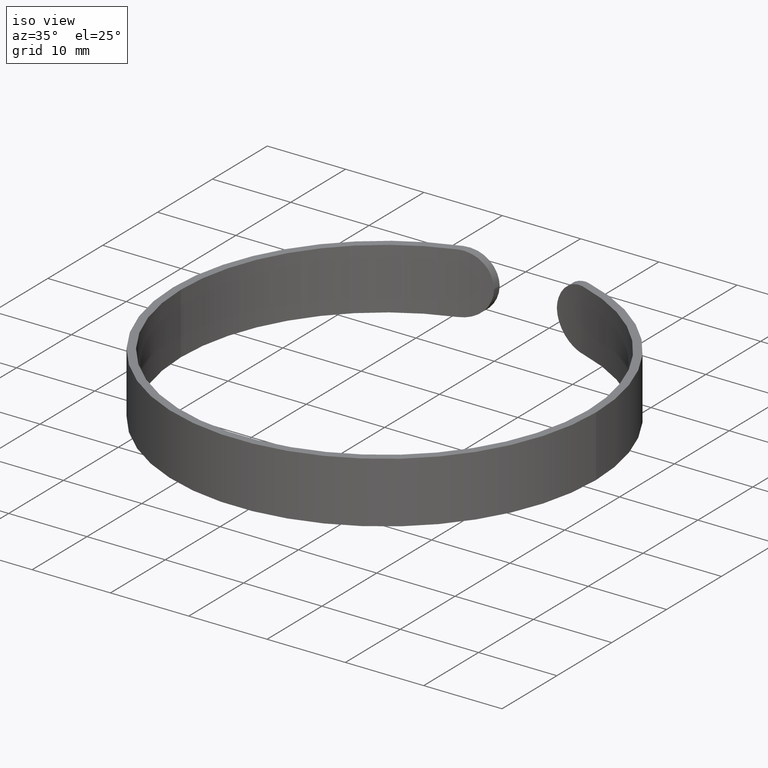
[diagram: clean part render]
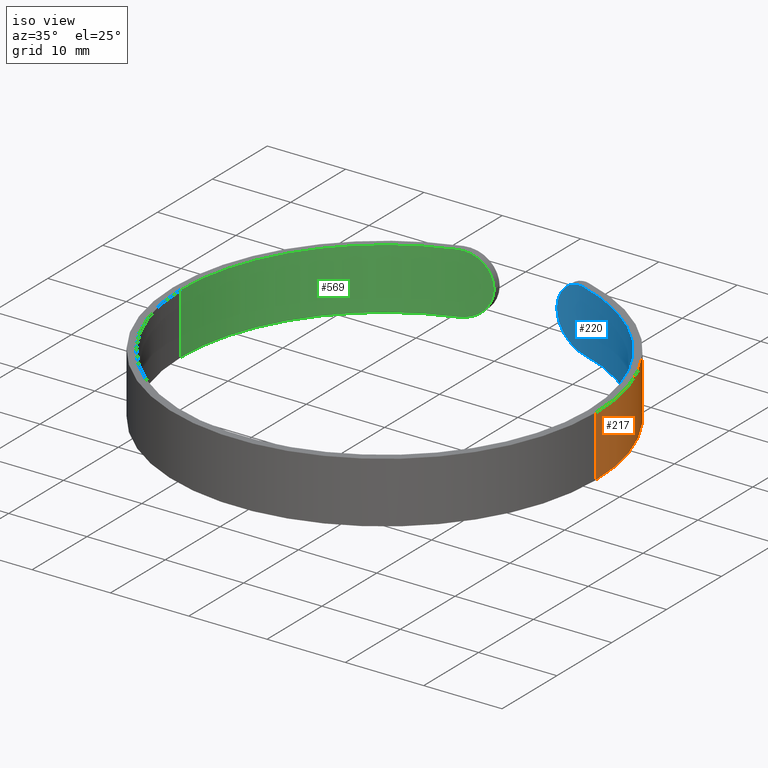
[diagram: same view with three faces highlighted in distinct colors, each labeled with its STEP entity id]
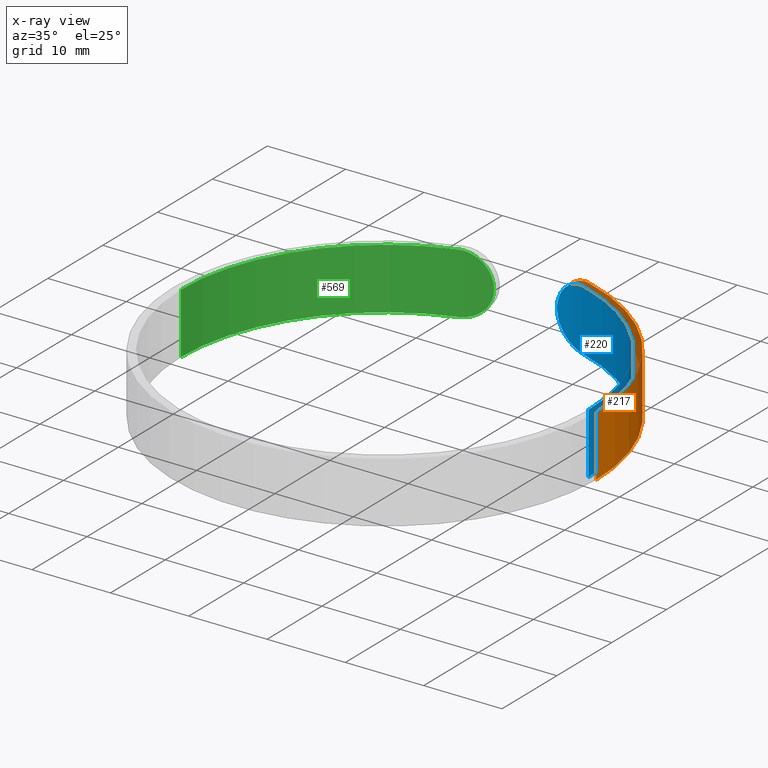
[diagram: x-ray of the same camera — body ghosted, the three highlighted faces saturated]
A machine part, iso view with three faces highlighted in distinct colors.
The next image is the same camera in x-ray (body ghosted, the three faces saturated) — at least one of them is partly hidden behind the body in this view.
Their STEP definitions:

[orange] entity #217 — the highlighted cylindrical surface (partial cylindrical patch) has radius 27 mm, axis along (-0, -0, -1).
#17 = FACE_OUTER_BOUND ( 'NONE', #358, .T. ) ;
#23 = DIRECTION ( 'NONE',  ( -1.000000000000000000, 0.0000000000000000000, 0.0000000000000000000 ) ) ;
#28 = CARTESIAN_POINT ( 'NONE',  ( 27.00000000000000000, 3.306546357697853700E-015, 7.799999999999999800 ) ) ;
#32 = ORIENTED_EDGE ( 'NONE', *, *, #405, .T. ) ;
#33 = VERTEX_POINT ( 'NONE', #245 ) ;
#40 = VERTEX_POINT ( 'NONE', #59 ) ;
#41 = CARTESIAN_POINT ( 'NONE',  ( 4.007819870348314800, 26.70088807542985900, 4.162704865217397900 ) ) ;
#42 = CARTESIAN_POINT ( 'NONE',  ( 7.999999999999994700, 25.78759391645525400, 0.0000000000000000000 ) ) ;
#44 = CARTESIAN_POINT ( 'NONE',  ( 6.058559701304446300, 26.31240341939475500, 0.4933939463681459300 ) ) ;
#59 = CARTESIAN_POINT ( 'NONE',  ( 27.00000000000000000, 3.306546357697853700E-015, 7.799999999999999800 ) ) ;
#84 = CARTESIAN_POINT ( 'NONE',  ( 5.620082168025788900, 26.40955440872725300, 7.025394363600939100 ) ) ;
#91 = DIRECTION ( 'NONE',  ( 1.000000000000000000, 0.0000000000000000000, 0.0000000000000000000 ) ) ;
#93 = CARTESIAN_POINT ( 'NONE',  ( 4.238450371291021300, 26.66546340360703800, 2.614994180940160900 ) ) ;
#98 = CARTESIAN_POINT ( 'NONE',  ( 4.001250195373559700, 26.70187253497448400, 3.900000000000101200 ) ) ;
#108 = ORIENTED_EDGE ( 'NONE', *, *, #491, .T. ) ;
#111 = AXIS2_PLACEMENT_3D ( 'NONE', #641, #235, #91 ) ;
#125 = ORIENTED_EDGE ( 'NONE', *, *, #208, .T. ) ;
#128 = CARTESIAN_POINT ( 'NONE',  ( 4.039934813351077700, 26.69610919695563600, 4.421010095181541600 ) ) ;
#129 = CARTESIAN_POINT ( 'NONE',  ( 7.999999999999994700, 25.78759391645525400, 0.0000000000000000000 ) ) ;
#137 = CARTESIAN_POINT ( 'NONE',  ( 0.0000000000000000000, 0.0000000000000000000, 0.0000000000000000000 ) ) ;
#142 = CARTESIAN_POINT ( 'NONE',  ( 6.283441498756500800, 26.25980404557259400, 7.421843993786557000 ) ) ;
#145 = CARTESIAN_POINT ( 'NONE',  ( 5.421180410330615400, 26.45084225209853900, 0.9313628374408270400 ) ) ;
#183 = CARTESIAN_POINT ( 'NONE',  ( 7.748180886082804100, 25.86571492758426400, 7.800000000000001600 ) ) ;
#189 = CARTESIAN_POINT ( 'NONE',  ( 4.449210977561581800, 26.63110815862059900, 2.140055364748432600 ) ) ;
#195 = VECTOR ( 'NONE', #327, 1000.000000000000000 ) ;
#208 = EDGE_CURVE ( 'NONE', #40, #628, #546, .T. ) ;
#217 = ADVANCED_FACE ( 'NONE', ( #17 ), #303, .T. ) ;
#219 = CIRCLE ( 'NONE', #111, 27.00000000000000000 ) ;
#226 = CARTESIAN_POINT ( 'NONE',  ( 4.447916046617571300, 26.63132473420645900, 5.657562369933908800 ) ) ;
#234 = ORIENTED_EDGE ( 'NONE', *, *, #513, .F. ) ;
#235 = DIRECTION ( 'NONE',  ( 0.0000000000000000000, 0.0000000000000000000, 1.000000000000000000 ) ) ;
#236 = CARTESIAN_POINT ( 'NONE',  ( 7.005985695510541500, 26.07645756370937900, 0.1173611193577188700 ) ) ;
#245 = CARTESIAN_POINT ( 'NONE',  ( 4.001250195373559700, 26.70187253497448400, 3.900000000000101200 ) ) ;
#247 = AXIS2_PLACEMENT_3D ( 'NONE', #137, #488, #340 ) ;
#277 = CARTESIAN_POINT ( 'NONE',  ( 4.153831656872943900, 26.67862444201846000, 4.929052211881025200 ) ) ;
#280 = CARTESIAN_POINT ( 'NONE',  ( 5.045906498979364100, 26.52498365252006400, 6.509187064666224200 ) ) ;
#285 = CARTESIAN_POINT ( 'NONE',  ( 4.001250195373559700, 26.70187253497448400, 3.900000000000101200 ) ) ;
#290 = CARTESIAN_POINT ( 'NONE',  ( 4.879146214224610900, 26.55592315440209500, 1.484470299274627000 ) ) ;
#291 = CARTESIAN_POINT ( 'NONE',  ( 5.047601220718753700, 26.52466728921124100, 1.288877361755761800 ) ) ;
#303 = CYLINDRICAL_SURFACE ( 'NONE', #427, 27.00000000000000000 ) ;
#327 = DIRECTION ( 'NONE',  ( -0.0000000000000000000, -0.0000000000000000000, -1.000000000000000000 ) ) ;
#329 = CIRCLE ( 'NONE', #247, 27.00000000000000000 ) ;
#340 = DIRECTION ( 'NONE',  ( 1.000000000000000000, 0.0000000000000000000, 0.0000000000000000000 ) ) ;
#344 = CARTESIAN_POINT ( 'NONE',  ( 4.156288639444874800, 26.67824408953929400, 2.861941979075576500 ) ) ;
#358 = EDGE_LOOP ( 'NONE', ( #234, #125, #375, #108, #32 ) ) ;
#375 = ORIENTED_EDGE ( 'NONE', *, *, #523, .T. ) ;
#390 = CARTESIAN_POINT ( 'NONE',  ( 6.760020303027413700, 26.14119351972756200, 0.1884732988676267900 ) ) ;
#394 = CARTESIAN_POINT ( 'NONE',  ( 7.748133600730116500, 25.86572959676287900, 5.336307567702090300E-017 ) ) ;
#396 = CARTESIAN_POINT ( 'NONE',  ( 4.579727380738215300, 26.60919426590005800, 1.909700203954421100 ) ) ;
#405 = EDGE_CURVE ( 'NONE', #33, #512, #406, .T. ) ;
#406 = B_SPLINE_CURVE_WITH_KNOTS ( 'NONE', 3,
 ( #285, #41, #128, #277, #480, #226, #436, #576, #280, #632, #84, #481, #142, #489, #494, #590, #183, #584 ),
 .UNSPECIFIED., .F., .F.,
 ( 4, 2, 2, 2, 2, 2, 2, 2, 4 ),
 ( 9.879197971822697900E-005, 0.0008790597157157524700, 0.001659327451713277800, 0.002439595187710803600, 0.003219862923708329000, 0.004000130659705854400, 0.004780398395703379700, 0.005560666131700905100, 0.006340933867698430500 ),
 .UNSPECIFIED. ) ;
#417 = VERTEX_POINT ( 'NONE', #129 ) ;
#427 = AXIS2_PLACEMENT_3D ( 'NONE', #505, #552, #23 ) ;
#436 = CARTESIAN_POINT ( 'NONE',  ( 4.575419281351804200, 26.60993418648599700, 5.883281332697667000 ) ) ;
#445 = CARTESIAN_POINT ( 'NONE',  ( 6.285135173327724100, 26.25941638700655600, 0.3772214988228275200 ) ) ;
#480 = CARTESIAN_POINT ( 'NONE',  ( 4.237022670844022600, 26.66569056190498800, 5.181245810972681600 ) ) ;
#481 = CARTESIAN_POINT ( 'NONE',  ( 6.056225128864234400, 26.31296305685469200, 7.305555154043175600 ) ) ;
#488 = DIRECTION ( 'NONE',  ( 0.0000000000000000000, 0.0000000000000000000, 1.000000000000000000 ) ) ;
#489 = CARTESIAN_POINT ( 'NONE',  ( 6.754649625995846800, 26.14256402899685100, 7.609649517932955300 ) ) ;
#491 = EDGE_CURVE ( 'NONE', #417, #33, #605, .T. ) ;
#494 = CARTESIAN_POINT ( 'NONE',  ( 7.000907081161654900, 26.07784237712200000, 7.681472893249745600 ) ) ;
#496 = CARTESIAN_POINT ( 'NONE',  ( 7.999999999999994700, 25.78759391645525400, 7.799999999999999800 ) ) ;
#505 = CARTESIAN_POINT ( 'NONE',  ( 0.0000000000000000000, 0.0000000000000000000, 7.799999999999999800 ) ) ;
#512 = VERTEX_POINT ( 'NONE', #496 ) ;
#513 = EDGE_CURVE ( 'NONE', #40, #512, #219, .T. ) ;
#523 = EDGE_CURVE ( 'NONE', #628, #417, #329, .T. ) ;
#546 = LINE ( 'NONE', #28, #195 ) ;
#550 = CARTESIAN_POINT ( 'NONE',  ( 27.00000000000000000, 3.306546357697853700E-015, 0.0000000000000000000 ) ) ;
#552 = DIRECTION ( 'NONE',  ( -0.0000000000000000000, -0.0000000000000000000, -1.000000000000000000 ) ) ;
#576 = CARTESIAN_POINT ( 'NONE',  ( 4.874436663139277900, 26.55678682044056400, 6.309714732190818700 ) ) ;
#584 = CARTESIAN_POINT ( 'NONE',  ( 7.999999999999994700, 25.78759391645525400, 7.799999999999999800 ) ) ;
#585 = CARTESIAN_POINT ( 'NONE',  ( 7.498938292582940000, 25.93899379547456600, 0.02358373904779675600 ) ) ;
#590 = CARTESIAN_POINT ( 'NONE',  ( 7.497956048065232100, 25.93929872040417100, 7.776426832198877600 ) ) ;
#593 = CARTESIAN_POINT ( 'NONE',  ( 4.007833048510694800, 26.70088610069474600, 3.636768173039843300 ) ) ;
#595 = CARTESIAN_POINT ( 'NONE',  ( 4.040295010326016900, 26.69605699696026900, 3.375476600116599000 ) ) ;
#605 = B_SPLINE_CURVE_WITH_KNOTS ( 'NONE', 3,
 ( #42, #394, #585, #236, #390, #445, #44, #638, #145, #291, #290, #396, #189, #93, #344, #595, #593, #98 ),
 .UNSPECIFIED., .F., .F.,
 ( 4, 2, 2, 2, 2, 2, 2, 2, 4 ),
 ( 0.0000000000000000000, 0.0007802975029534383400, 0.001560595005906876700, 0.002340892508860314800, 0.003121190011813753300, 0.003901487514767191900, 0.004681785017720629600, 0.005462082520674068100, 0.006242380023627506700 ),
 .UNSPECIFIED. ) ;
#628 = VERTEX_POINT ( 'NONE', #550 ) ;
#632 = CARTESIAN_POINT ( 'NONE',  ( 5.417826170024018700, 26.45152339193910900, 6.865736661214451300 ) ) ;
#638 = CARTESIAN_POINT ( 'NONE',  ( 5.627571651187834000, 26.40793738007558700, 0.7693560737031041000 ) ) ;
#641 = CARTESIAN_POINT ( 'NONE',  ( 0.0000000000000000000, 0.0000000000000000000, 7.799999999999999800 ) ) ;

[blue] entity #220 — the highlighted cylindrical surface (partial cylindrical patch) has radius 26 mm, axis along (-0, -0, -1).
#14 = CARTESIAN_POINT ( 'NONE',  ( 5.049572312465119100, 25.50565188433558500, 6.513281062536298900 ) ) ;
#25 = CYLINDRICAL_SURFACE ( 'NONE', #141, 25.99999999999999600 ) ;
#29 = DIRECTION ( 'NONE',  ( -0.0000000000000000000, -0.0000000000000000000, -1.000000000000000000 ) ) ;
#31 = CARTESIAN_POINT ( 'NONE',  ( 5.047872861668781600, 25.50598163043550700, 1.288661607061337000 ) ) ;
#36 = CARTESIAN_POINT ( 'NONE',  ( 7.999999999999986700, 24.73863375370596200, 0.0000000000000000000 ) ) ;
#37 = CARTESIAN_POINT ( 'NONE',  ( 4.237548822465045700, 25.65257616834034600, 2.617273710571744500 ) ) ;
#47 = VERTEX_POINT ( 'NONE', #148 ) ;
#68 = CARTESIAN_POINT ( 'NONE',  ( 7.748788071919430600, 24.81987087636408500, 7.800000000000000700 ) ) ;
#75 = FACE_OUTER_BOUND ( 'NONE', #504, .T. ) ;
#86 = CARTESIAN_POINT ( 'NONE',  ( 7.003066787533663600, 25.04044279315927900, 0.1180044391545461300 ) ) ;
#88 = VERTEX_POINT ( 'NONE', #299 ) ;
#90 = CARTESIAN_POINT ( 'NONE',  ( 4.876187300520419000, 25.53910726636712900, 1.488081249797971600 ) ) ;
#101 = DIRECTION ( 'NONE',  ( -0.0000000000000000000, -0.0000000000000000000, -1.000000000000000000 ) ) ;
#113 = EDGE_CURVE ( 'NONE', #324, #139, #533, .T. ) ;
#117 = ORIENTED_EDGE ( 'NONE', *, *, #560, .F. ) ;
#118 = DIRECTION ( 'NONE',  ( -0.0000000000000000000, -0.0000000000000000000, -1.000000000000000000 ) ) ;
#132 = CARTESIAN_POINT ( 'NONE',  ( 6.286061220629906500, 25.22983558745896500, 0.3769302742100142900 ) ) ;
#139 = VERTEX_POINT ( 'NONE', #502 ) ;
#141 = AXIS2_PLACEMENT_3D ( 'NONE', #571, #29, #376 ) ;
#148 = CARTESIAN_POINT ( 'NONE',  ( 25.99999999999999600, 3.184081677783117800E-015, 0.0000000000000000000 ) ) ;
#157 = CARTESIAN_POINT ( 'NONE',  ( 4.001250195373553500, 25.69027047101729300, 3.899999999999988800 ) ) ;
#158 = CARTESIAN_POINT ( 'NONE',  ( 5.630160220429139900, 25.38405445988136900, 7.032536242849247700 ) ) ;
#167 = ORIENTED_EDGE ( 'NONE', *, *, #360, .T. ) ;
#168 = CARTESIAN_POINT ( 'NONE',  ( 7.999999999999986700, 24.73863375370596200, 7.799999999999999800 ) ) ;
#170 = AXIS2_PLACEMENT_3D ( 'NONE', #568, #474, #426 ) ;
#172 = CARTESIAN_POINT ( 'NONE',  ( 7.499172835405510700, 24.89636773693817100, 0.02345155747518940300 ) ) ;
#177 = CARTESIAN_POINT ( 'NONE',  ( 5.420193217539927700, 25.42946371523040500, 0.9322634586607856400 ) ) ;
#204 = ORIENTED_EDGE ( 'NONE', *, *, #224, .F. ) ;
#206 = CARTESIAN_POINT ( 'NONE',  ( 7.500120084267892100, 24.89606103363017200, 7.776537052880254200 ) ) ;
#207 = CARTESIAN_POINT ( 'NONE',  ( 4.581001283526274100, 25.59370388543928200, 5.892402277475245100 ) ) ;
#220 = ADVANCED_FACE ( 'NONE', ( #75 ), #25, .F. ) ;
#224 = EDGE_CURVE ( 'NONE', #529, #47, #286, .T. ) ;
#238 = CARTESIAN_POINT ( 'NONE',  ( 25.99999999999999600, 3.184081677783117800E-015, 7.799999999999999800 ) ) ;
#254 = CARTESIAN_POINT ( 'NONE',  ( 4.007841382784927300, 25.68924389599750000, 4.163565093734892900 ) ) ;
#257 = EDGE_CURVE ( 'NONE', #88, #47, #472, .T. ) ;
#260 = CARTESIAN_POINT ( 'NONE',  ( 4.156634626645756100, 25.66565511774347300, 4.939287385536518500 ) ) ;
#286 = LINE ( 'NONE', #566, #366 ) ;
#298 = AXIS2_PLACEMENT_3D ( 'NONE', #603, #101, #401 ) ;
#299 = CARTESIAN_POINT ( 'NONE',  ( 7.999999999999986700, 24.73863375370596200, 0.0000000000000000000 ) ) ;
#308 = B_SPLINE_CURVE_WITH_KNOTS ( 'NONE', 3,
 ( #563, #328, #635, #631, #37, #440, #486, #90, #31, #177, #430, #382, #132, #435, #86, #172, #438, #36 ),
 .UNSPECIFIED., .F., .F.,
 ( 4, 2, 2, 2, 2, 2, 2, 2, 4 ),
 ( 9.879209427586440300E-005, 0.0008800166075159095000, 0.001661241120755954400, 0.002442465633995999400, 0.003223690147236044500, 0.004004914660476089700, 0.004786139173716134400, 0.005567363686956180000, 0.006348588200196224700 ),
 .UNSPECIFIED. ) ;
#309 = CARTESIAN_POINT ( 'NONE',  ( 4.040394101418805800, 25.68421070517065600, 4.425263358803368500 ) ) ;
#324 = VERTEX_POINT ( 'NONE', #168 ) ;
#328 = CARTESIAN_POINT ( 'NONE',  ( 4.007827905764317600, 25.68924599503852900, 3.636973818600236300 ) ) ;
#359 = CARTESIAN_POINT ( 'NONE',  ( 6.287753112044561600, 25.22943243977667300, 7.424001590474534700 ) ) ;
#360 = EDGE_CURVE ( 'NONE', #139, #88, #308, .T. ) ;
#362 = CARTESIAN_POINT ( 'NONE',  ( 6.061213610281501300, 25.28459243295142400, 7.308067627229085900 ) ) ;
#363 = CARTESIAN_POINT ( 'NONE',  ( 7.008000447809927800, 25.03904123548209200, 7.683125513235004300 ) ) ;
#366 = VECTOR ( 'NONE', #118, 1000.000000000000000 ) ;
#368 = ORIENTED_EDGE ( 'NONE', *, *, #257, .T. ) ;
#376 = DIRECTION ( 'NONE',  ( -1.000000000000000000, 0.0000000000000000000, 0.0000000000000000000 ) ) ;
#382 = CARTESIAN_POINT ( 'NONE',  ( 6.058904020210269100, 25.28516882279998200, 0.4929710258678577900 ) ) ;
#401 = DIRECTION ( 'NONE',  ( 1.000000000000000000, 0.0000000000000000000, 0.0000000000000000000 ) ) ;
#412 = CARTESIAN_POINT ( 'NONE',  ( 6.762369307743046700, 25.10638288915742000, 7.612275856054831800 ) ) ;
#426 = DIRECTION ( 'NONE',  ( 1.000000000000000000, 0.0000000000000000000, 0.0000000000000000000 ) ) ;
#430 = CARTESIAN_POINT ( 'NONE',  ( 5.622771275691029300, 25.38571494964994100, 0.7726342908683954100 ) ) ;
#435 = CARTESIAN_POINT ( 'NONE',  ( 6.757004137256891400, 25.10780883567523200, 0.1895956038016023100 ) ) ;
#438 = CARTESIAN_POINT ( 'NONE',  ( 7.748838390612784900, 24.81985460426311000, -3.743885626864008500E-016 ) ) ;
#440 = CARTESIAN_POINT ( 'NONE',  ( 4.448865052461462400, 25.61677348614116300, 2.140588415874348400 ) ) ;
#451 = CARTESIAN_POINT ( 'NONE',  ( 7.999999999999986700, 24.73863375370596200, 7.799999999999999800 ) ) ;
#472 = CIRCLE ( 'NONE', #170, 25.99999999999999600 ) ;
#474 = DIRECTION ( 'NONE',  ( -0.0000000000000000000, -0.0000000000000000000, -1.000000000000000000 ) ) ;
#484 = ORIENTED_EDGE ( 'NONE', *, *, #113, .T. ) ;
#486 = CARTESIAN_POINT ( 'NONE',  ( 4.576615546530158300, 25.59448754501682500, 1.914722926614445900 ) ) ;
#490 = CIRCLE ( 'NONE', #298, 25.99999999999999600 ) ;
#502 = CARTESIAN_POINT ( 'NONE',  ( 4.001250195373553500, 25.69027047101729300, 3.899999999999988800 ) ) ;
#504 = EDGE_LOOP ( 'NONE', ( #204, #117, #484, #167, #368 ) ) ;
#507 = CARTESIAN_POINT ( 'NONE',  ( 5.423629199670597400, 25.42873777615016500, 6.870705320101646600 ) ) ;
#529 = VERTEX_POINT ( 'NONE', #238 ) ;
#533 = B_SPLINE_CURVE_WITH_KNOTS ( 'NONE', 3,
 ( #451, #68, #206, #363, #412, #359, #362, #158, #507, #14, #555, #207, #549, #607, #260, #309, #254, #157 ),
 .UNSPECIFIED., .F., .F.,
 ( 4, 2, 2, 2, 2, 2, 2, 2, 4 ),
 ( 0.0000000000000000000, 0.0007812524358064630400, 0.001562504871612926100, 0.002343757307419389100, 0.003125009743225852200, 0.003906262179032315600, 0.004687514614838778200, 0.005468767050645240900, 0.006250019486451704300 ),
 .UNSPECIFIED. ) ;
#549 = CARTESIAN_POINT ( 'NONE',  ( 4.450187752983543600, 25.61654353332943800, 5.661849208850442000 ) ) ;
#555 = CARTESIAN_POINT ( 'NONE',  ( 4.880877945693832500, 25.53821218907969700, 6.317692817714949200 ) ) ;
#560 = EDGE_CURVE ( 'NONE', #324, #529, #490, .T. ) ;
#563 = CARTESIAN_POINT ( 'NONE',  ( 4.001250195373553500, 25.69027047101729300, 3.899999999999988800 ) ) ;
#566 = CARTESIAN_POINT ( 'NONE',  ( 25.99999999999999600, 3.184081677783117800E-015, 7.799999999999999800 ) ) ;
#568 = CARTESIAN_POINT ( 'NONE',  ( 0.0000000000000000000, 0.0000000000000000000, 0.0000000000000000000 ) ) ;
#571 = CARTESIAN_POINT ( 'NONE',  ( 0.0000000000000000000, 0.0000000000000000000, 7.799999999999999800 ) ) ;
#603 = CARTESIAN_POINT ( 'NONE',  ( 0.0000000000000000000, 0.0000000000000000000, 7.799999999999999800 ) ) ;
#607 = CARTESIAN_POINT ( 'NONE',  ( 4.238969728637304300, 25.65234120448782200, 5.186470613990248800 ) ) ;
#631 = CARTESIAN_POINT ( 'NONE',  ( 4.154166560795372800, 25.66605230482334600, 2.869735357680985200 ) ) ;
#635 = CARTESIAN_POINT ( 'NONE',  ( 4.040012748647260600, 25.68426829246895300, 3.378361863376464900 ) ) ;

[green] entity #569 — the highlighted cylindrical surface (partial cylindrical patch) has radius 26 mm, axis along (-0, -0, -1).
#8 = CYLINDRICAL_SURFACE ( 'NONE', #21, 25.99999999999999600 ) ;
#18 = CARTESIAN_POINT ( 'NONE',  ( -4.450187752983521400, 25.61654353332943800, 2.138150791149620900 ) ) ;
#20 = CARTESIAN_POINT ( 'NONE',  ( -8.000000000000010700, 24.73863375370595500, 7.799999999999999800 ) ) ;
#21 = AXIS2_PLACEMENT_3D ( 'NONE', #249, #151, #244 ) ;
#27 = VERTEX_POINT ( 'NONE', #599 ) ;
#46 = LINE ( 'NONE', #398, #279 ) ;
#49 = B_SPLINE_CURVE_WITH_KNOTS ( 'NONE', 3,
 ( #163, #64, #317, #266, #63, #256, #611, #199, #511, #311, #201, #419, #72, #70, #356, #109, #614, #315 ),
 .UNSPECIFIED., .F., .F.,
 ( 4, 2, 2, 2, 2, 2, 2, 2, 4 ),
 ( 9.879209427596740300E-005, 0.0008800166075160012200, 0.001661241120756035100, 0.002442465633996069200, 0.003223690147236103100, 0.004004914660476136500, 0.004786139173716170800, 0.005567363686956204200, 0.006348588200196238600 ),
 .UNSPECIFIED. ) ;
#50 = CARTESIAN_POINT ( 'NONE',  ( -8.000000000000010700, 24.73863375370595500, 0.0000000000000000000 ) ) ;
#63 = CARTESIAN_POINT ( 'NONE',  ( -4.237548822465086600, 25.65257616834033900, 5.182726289428336100 ) ) ;
#64 = CARTESIAN_POINT ( 'NONE',  ( -4.007827905764338000, 25.68924599503852900, 4.163026181399861700 ) ) ;
#70 = CARTESIAN_POINT ( 'NONE',  ( -6.757004137256932300, 25.10780883567521800, 7.610404396198404700 ) ) ;
#72 = CARTESIAN_POINT ( 'NONE',  ( -6.286061220629954400, 25.22983558745895000, 7.423069725790000500 ) ) ;
#76 = CARTESIAN_POINT ( 'NONE',  ( -4.001250195373561500, 25.69027047101732100, 3.900000000000115800 ) ) ;
#79 = VERTEX_POINT ( 'NONE', #197 ) ;
#80 = VERTEX_POINT ( 'NONE', #50 ) ;
#92 = EDGE_CURVE ( 'NONE', #221, #79, #46, .T. ) ;
#96 = VERTEX_POINT ( 'NONE', #20 ) ;
#109 = CARTESIAN_POINT ( 'NONE',  ( -7.499172835405544500, 24.89636773693817100, 7.776548442524812400 ) ) ;
#112 = CARTESIAN_POINT ( 'NONE',  ( -6.061213610281491500, 25.28459243295142000, 0.4919323727709271100 ) ) ;
#114 = CARTESIAN_POINT ( 'NONE',  ( -7.008000447809932300, 25.03904123548209900, 0.1168744867649993000 ) ) ;
#134 = CARTESIAN_POINT ( 'NONE',  ( 0.0000000000000000000, 0.0000000000000000000, 7.799999999999999800 ) ) ;
#146 = EDGE_CURVE ( 'NONE', #27, #96, #49, .T. ) ;
#151 = DIRECTION ( 'NONE',  ( -0.0000000000000000000, -0.0000000000000000000, -1.000000000000000000 ) ) ;
#160 = CARTESIAN_POINT ( 'NONE',  ( -5.049572312465098600, 25.50565188433559500, 1.286718937463738700 ) ) ;
#163 = CARTESIAN_POINT ( 'NONE',  ( -4.001250195373561500, 25.69027047101732100, 3.900000000000115800 ) ) ;
#169 = CARTESIAN_POINT ( 'NONE',  ( 0.0000000000000000000, 0.0000000000000000000, 0.0000000000000000000 ) ) ;
#176 = EDGE_CURVE ( 'NONE', #80, #27, #265, .T. ) ;
#197 = CARTESIAN_POINT ( 'NONE',  ( -25.99999999999999600, 0.0000000000000000000, 0.0000000000000000000 ) ) ;
#199 = CARTESIAN_POINT ( 'NONE',  ( -4.876187300520471400, 25.53910726636711500, 6.311918750202077700 ) ) ;
#201 = CARTESIAN_POINT ( 'NONE',  ( -5.622771275691081700, 25.38571494964993000, 7.027365709131633100 ) ) ;
#210 = CARTESIAN_POINT ( 'NONE',  ( -7.500120084267905400, 24.89606103363017200, 0.02346294711974794900 ) ) ;
#221 = VERTEX_POINT ( 'NONE', #624 ) ;
#231 = ORIENTED_EDGE ( 'NONE', *, *, #92, .T. ) ;
#233 = FACE_OUTER_BOUND ( 'NONE', #456, .T. ) ;
#240 = EDGE_CURVE ( 'NONE', #79, #80, #455, .T. ) ;
#244 = DIRECTION ( 'NONE',  ( -1.000000000000000000, 0.0000000000000000000, 0.0000000000000000000 ) ) ;
#249 = CARTESIAN_POINT ( 'NONE',  ( 0.0000000000000000000, 0.0000000000000000000, 7.799999999999999800 ) ) ;
#253 = ORIENTED_EDGE ( 'NONE', *, *, #240, .T. ) ;
#256 = CARTESIAN_POINT ( 'NONE',  ( -4.448865052461508500, 25.61677348614114900, 5.659411584125720700 ) ) ;
#259 = CARTESIAN_POINT ( 'NONE',  ( -6.287753112044554400, 25.22943243977668000, 0.3759984095254784700 ) ) ;
#265 = B_SPLINE_CURVE_WITH_KNOTS ( 'NONE', 3,
 ( #418, #469, #210, #114, #463, #259, #112, #466, #468, #160, #509, #561, #18, #562, #616, #320, #367, #76 ),
 .UNSPECIFIED., .F., .F.,
 ( 4, 2, 2, 2, 2, 2, 2, 2, 4 ),
 ( 0.0000000000000000000, 0.0007812524358064777900, 0.001562504871612955600, 0.002343757307419433400, 0.003125009743225911100, 0.003906262179032388500, 0.004687514614838866700, 0.005468767050645344900, 0.006250019486451822300 ),
 .UNSPECIFIED. ) ;
#266 = CARTESIAN_POINT ( 'NONE',  ( -4.154166560795406600, 25.66605230482333200, 4.930264642319098600 ) ) ;
#279 = VECTOR ( 'NONE', #602, 1000.000000000000000 ) ;
#281 = DIRECTION ( 'NONE',  ( -0.0000000000000000000, -0.0000000000000000000, -1.000000000000000000 ) ) ;
#293 = ORIENTED_EDGE ( 'NONE', *, *, #176, .T. ) ;
#311 = CARTESIAN_POINT ( 'NONE',  ( -5.420193217539980100, 25.42946371523039800, 6.867736541339247900 ) ) ;
#315 = CARTESIAN_POINT ( 'NONE',  ( -8.000000000000010700, 24.73863375370595500, 7.799999999999999800 ) ) ;
#317 = CARTESIAN_POINT ( 'NONE',  ( -4.040012748647282800, 25.68426829246895000, 4.421638136623629500 ) ) ;
#320 = CARTESIAN_POINT ( 'NONE',  ( -4.040394101418800500, 25.68421070517065600, 3.374736641196727200 ) ) ;
#332 = EDGE_CURVE ( 'NONE', #221, #96, #587, .T. ) ;
#335 = DIRECTION ( 'NONE',  ( 1.000000000000000000, 0.0000000000000000000, 0.0000000000000000000 ) ) ;
#356 = CARTESIAN_POINT ( 'NONE',  ( -7.003066787533702700, 25.04044279315927600, 7.681995560845457800 ) ) ;
#367 = CARTESIAN_POINT ( 'NONE',  ( -4.007841382784927300, 25.68924389599749200, 3.636434906265205500 ) ) ;
#398 = CARTESIAN_POINT ( 'NONE',  ( -25.99999999999999600, 0.0000000000000000000, 7.799999999999999800 ) ) ;
#418 = CARTESIAN_POINT ( 'NONE',  ( -8.000000000000010700, 24.73863375370595500, 0.0000000000000000000 ) ) ;
#419 = CARTESIAN_POINT ( 'NONE',  ( -6.058904020210318800, 25.28516882279997400, 7.307028974132160600 ) ) ;
#424 = ORIENTED_EDGE ( 'NONE', *, *, #332, .F. ) ;
#455 = CIRCLE ( 'NONE', #575, 25.99999999999999600 ) ;
#456 = EDGE_LOOP ( 'NONE', ( #424, #231, #253, #293, #558 ) ) ;
#463 = CARTESIAN_POINT ( 'NONE',  ( -6.762369307743045800, 25.10638288915742700, 0.1877241439451747000 ) ) ;
#466 = CARTESIAN_POINT ( 'NONE',  ( -5.630160220429121200, 25.38405445988137300, 0.7674637571507733100 ) ) ;
#468 = CARTESIAN_POINT ( 'NONE',  ( -5.423629199670577000, 25.42873777615017200, 0.9292946798983808800 ) ) ;
#469 = CARTESIAN_POINT ( 'NONE',  ( -7.748788071919452000, 24.81987087636408200, -1.334076891925522600E-017 ) ) ;
#470 = AXIS2_PLACEMENT_3D ( 'NONE', #134, #281, #335 ) ;
#509 = CARTESIAN_POINT ( 'NONE',  ( -4.880877945693809400, 25.53821218907970800, 1.482307182285093100 ) ) ;
#511 = CARTESIAN_POINT ( 'NONE',  ( -5.047872861668835800, 25.50598163043549200, 6.511338392938705900 ) ) ;
#514 = DIRECTION ( 'NONE',  ( -0.0000000000000000000, -0.0000000000000000000, -1.000000000000000000 ) ) ;
#519 = DIRECTION ( 'NONE',  ( 1.000000000000000000, 0.0000000000000000000, 0.0000000000000000000 ) ) ;
#558 = ORIENTED_EDGE ( 'NONE', *, *, #146, .T. ) ;
#561 = CARTESIAN_POINT ( 'NONE',  ( -4.581001283526250100, 25.59370388543928600, 1.907597722524812000 ) ) ;
#562 = CARTESIAN_POINT ( 'NONE',  ( -4.238969728637289200, 25.65234120448782900, 2.613529386009827900 ) ) ;
#569 = ADVANCED_FACE ( 'NONE', ( #233 ), #8, .F. ) ;
#575 = AXIS2_PLACEMENT_3D ( 'NONE', #169, #514, #519 ) ;
#587 = CIRCLE ( 'NONE', #470, 25.99999999999999600 ) ;
#599 = CARTESIAN_POINT ( 'NONE',  ( -4.001250195373561500, 25.69027047101732100, 3.900000000000115800 ) ) ;
#602 = DIRECTION ( 'NONE',  ( -0.0000000000000000000, -0.0000000000000000000, -1.000000000000000000 ) ) ;
#611 = CARTESIAN_POINT ( 'NONE',  ( -4.576615546530205400, 25.59448754501681100, 5.885277073385616100 ) ) ;
#614 = CARTESIAN_POINT ( 'NONE',  ( -7.748838390612811500, 24.81985460426309600, 7.800000000000001600 ) ) ;
#616 = CARTESIAN_POINT ( 'NONE',  ( -4.156634626645741900, 25.66565511774347600, 2.860712614463564400 ) ) ;
#624 = CARTESIAN_POINT ( 'NONE',  ( -25.99999999999999600, 0.0000000000000000000, 7.799999999999999800 ) ) ;